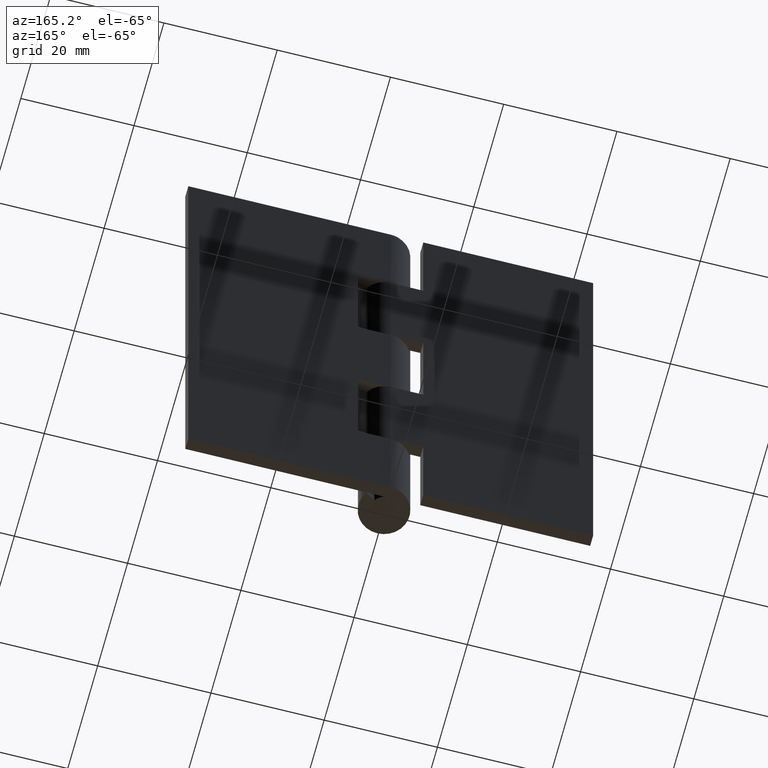
[diagram: clean part render]
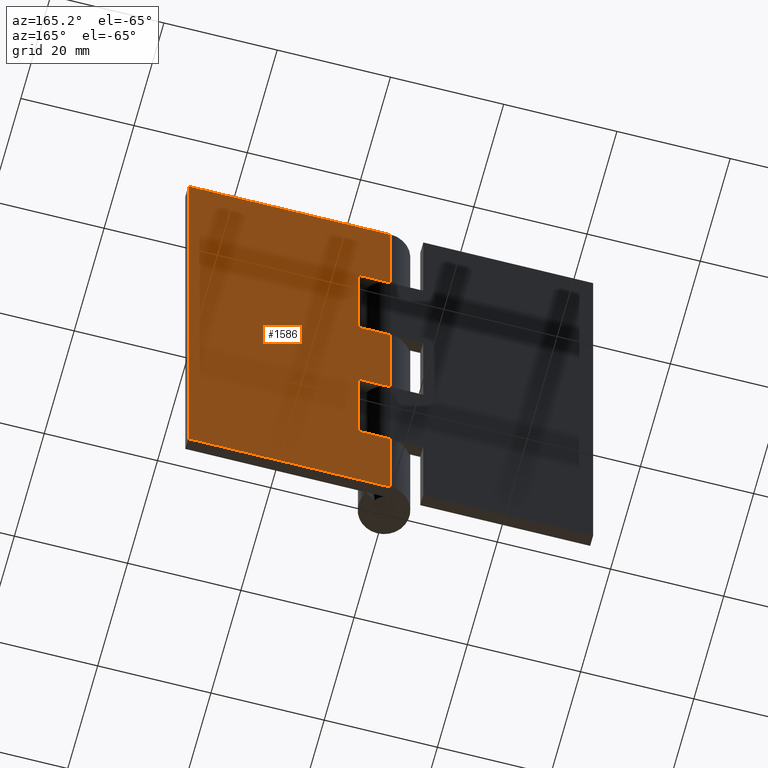
[diagram: same view with one face highlighted and labeled with its STEP entity id]
A machine part, auxiliary view. The second image highlights one B-rep face of the part: STEP entity #1586.
In plain terms, the highlighted face is a freeform B-spline surface patch.
Its self-contained STEP definition (entity closure, byte-faithful):
#768=CARTESIAN_POINT('',(5.750000000000000,4.499999999999949,40.500000000000000));
#769=VERTEX_POINT('',#768);
#775=CARTESIAN_POINT('',(5.750000000000000,4.499999999999949,19.500000000000000));
#776=VERTEX_POINT('',#775);
#777=CARTESIAN_POINT('',(5.750000000000000,4.499999999999949,40.500000000000000));
#778=CARTESIAN_POINT('',(5.750000000000000,4.499999999999949,19.500000000000000));
#779=QUASI_UNIFORM_CURVE('',1,(#777,#778),.UNSPECIFIED.,.F.,.U.);
#780=EDGE_CURVE('',#769,#776,#779,.T.);
#832=CARTESIAN_POINT('',(0.0,4.499999999999949,40.500000000000000));
#833=VERTEX_POINT('',#832);
#853=CARTESIAN_POINT('',(0.0,4.499999999999949,40.500000000000000));
#854=CARTESIAN_POINT('',(5.750000000000000,4.499999999999949,40.500000000000000));
#855=QUASI_UNIFORM_CURVE('',1,(#853,#854),.UNSPECIFIED.,.F.,.U.);
#856=EDGE_CURVE('',#833,#769,#855,.T.);
#873=CARTESIAN_POINT('',(0.0,4.499999999999949,19.500000000000000));
#874=VERTEX_POINT('',#873);
#875=CARTESIAN_POINT('',(5.750000000000000,4.499999999999949,19.500000000000000));
#876=CARTESIAN_POINT('',(0.0,4.499999999999949,19.500000000000000));
#877=QUASI_UNIFORM_CURVE('',1,(#875,#876),.UNSPECIFIED.,.F.,.U.);
#878=EDGE_CURVE('',#776,#874,#877,.T.);
#944=CARTESIAN_POINT('',(5.750000000000000,4.499999999999949,82.500007999999994));
#945=VERTEX_POINT('',#944);
#951=CARTESIAN_POINT('',(5.750000000000000,4.499999999999949,61.500008000000001));
#952=VERTEX_POINT('',#951);
#953=CARTESIAN_POINT('',(5.750000000000000,4.499999999999949,61.500008000000001));
#954=CARTESIAN_POINT('',(5.750000000000000,4.499999999999949,82.500007999999994));
#955=QUASI_UNIFORM_CURVE('',1,(#953,#954),.UNSPECIFIED.,.F.,.U.);
#956=EDGE_CURVE('',#952,#945,#955,.T.);
#979=CARTESIAN_POINT('',(0.0,4.499999999999949,61.500008000000001));
#980=VERTEX_POINT('',#979);
#981=CARTESIAN_POINT('',(0.0,4.499999999999949,61.500008000000001));
#982=CARTESIAN_POINT('',(5.750000000000000,4.499999999999949,61.500008000000001));
#983=QUASI_UNIFORM_CURVE('',1,(#981,#982),.UNSPECIFIED.,.F.,.U.);
#984=EDGE_CURVE('',#980,#952,#983,.T.);
#1078=CARTESIAN_POINT('',(0.0,4.499999999999949,82.500007999999994));
#1079=VERTEX_POINT('',#1078);
#1099=CARTESIAN_POINT('',(5.750000000000000,4.499999999999949,82.500007999999994));
#1100=CARTESIAN_POINT('',(0.0,4.499999999999949,82.500007999999994));
#1101=QUASI_UNIFORM_CURVE('',1,(#1099,#1100),.UNSPECIFIED.,.F.,.U.);
#1102=EDGE_CURVE('',#945,#1079,#1101,.T.);
#1118=CARTESIAN_POINT('',(-8.266093E-016,4.500000000000000,0.0));
#1119=VERTEX_POINT('',#1118);
#1120=CARTESIAN_POINT('',(35.750000000000000,4.500000000000000,0.0));
#1121=VERTEX_POINT('',#1120);
#1122=CARTESIAN_POINT('',(-8.266093E-016,4.500000000000000,0.0));
#1123=CARTESIAN_POINT('',(35.750000000000000,4.500000000000000,0.0));
#1124=QUASI_UNIFORM_CURVE('',1,(#1122,#1123),.UNSPECIFIED.,.F.,.U.);
#1125=EDGE_CURVE('',#1119,#1121,#1124,.T.);
#1196=CARTESIAN_POINT('',(-8.266093E-016,4.500000000000000,102.000007999999990));
#1197=VERTEX_POINT('',#1196);
#1198=CARTESIAN_POINT('',(35.750000000000000,4.500000000000000,102.000007999999990));
#1199=VERTEX_POINT('',#1198);
#1200=CARTESIAN_POINT('',(-8.266093E-016,4.500000000000000,102.000007999999990));
#1201=CARTESIAN_POINT('',(35.750000000000000,4.500000000000000,102.000007999999990));
#1202=QUASI_UNIFORM_CURVE('',1,(#1200,#1201),.UNSPECIFIED.,.F.,.U.);
#1203=EDGE_CURVE('',#1197,#1199,#1202,.T.);
#1275=CARTESIAN_POINT('',(35.750000000000000,4.500000000000000,102.000007999999990));
#1276=CARTESIAN_POINT('',(35.750000000000000,4.500000000000000,0.0));
#1277=QUASI_UNIFORM_CURVE('',1,(#1275,#1276),.UNSPECIFIED.,.F.,.U.);
#1278=EDGE_CURVE('',#1199,#1121,#1277,.T.);
#1318=CARTESIAN_POINT('',(-8.266093E-016,4.500000000000000,102.000007999999990));
#1319=CARTESIAN_POINT('',(0.0,4.499999999999949,82.500007999999994));
#1320=QUASI_UNIFORM_CURVE('',1,(#1318,#1319),.UNSPECIFIED.,.F.,.U.);
#1321=EDGE_CURVE('',#1197,#1079,#1320,.T.);
#1404=CARTESIAN_POINT('',(0.0,4.499999999999949,61.500008000000001));
#1405=CARTESIAN_POINT('',(0.0,4.499999999999949,40.500000000000000));
#1406=QUASI_UNIFORM_CURVE('',1,(#1404,#1405),.UNSPECIFIED.,.F.,.U.);
#1407=EDGE_CURVE('',#980,#833,#1406,.T.);
#1435=CARTESIAN_POINT('',(0.0,4.499999999999949,19.500000000000000));
#1436=CARTESIAN_POINT('',(-8.266093E-016,4.500000000000000,0.0));
#1437=QUASI_UNIFORM_CURVE('',1,(#1435,#1436),.UNSPECIFIED.,.F.,.U.);
#1438=EDGE_CURVE('',#874,#1119,#1437,.T.);
#1567=CARTESIAN_POINT('',(-1.785712430709566,4.500000000000000,-5.094900201904192));
#1568=CARTESIAN_POINT('',(-1.785712430709566,4.500000000000000,107.094910937757600));
#1569=CARTESIAN_POINT('',(37.535713389599302,4.500000000000000,-5.094900201904192));
#1570=CARTESIAN_POINT('',(37.535713389599302,4.500000000000000,107.094910937757600));
#1571=B_SPLINE_SURFACE_WITH_KNOTS('',1,1,((#1567,#1569),(#1568,#1570)),.UNSPECIFIED.,.F.,.F.,.U.,(2,2),(2,2),(0.0,112.189811139661800),(0.0,39.321425820308868),.UNSPECIFIED.);
#1572=ORIENTED_EDGE('',*,*,#1438,.F.);
#1573=ORIENTED_EDGE('',*,*,#878,.F.);
#1574=ORIENTED_EDGE('',*,*,#780,.F.);
#1575=ORIENTED_EDGE('',*,*,#856,.F.);
#1576=ORIENTED_EDGE('',*,*,#1407,.F.);
#1577=ORIENTED_EDGE('',*,*,#984,.T.);
#1578=ORIENTED_EDGE('',*,*,#956,.T.);
#1579=ORIENTED_EDGE('',*,*,#1102,.T.);
#1580=ORIENTED_EDGE('',*,*,#1321,.F.);
#1581=ORIENTED_EDGE('',*,*,#1203,.T.);
#1582=ORIENTED_EDGE('',*,*,#1278,.T.);
#1583=ORIENTED_EDGE('',*,*,#1125,.F.);
#1584=EDGE_LOOP('',(#1572,#1573,#1574,#1575,#1576,#1577,#1578,#1579,#1580,#1581,#1582,#1583));
#1585=FACE_OUTER_BOUND('',#1584,.T.);
#1586=ADVANCED_FACE('',(#1585),#1571,.T.);